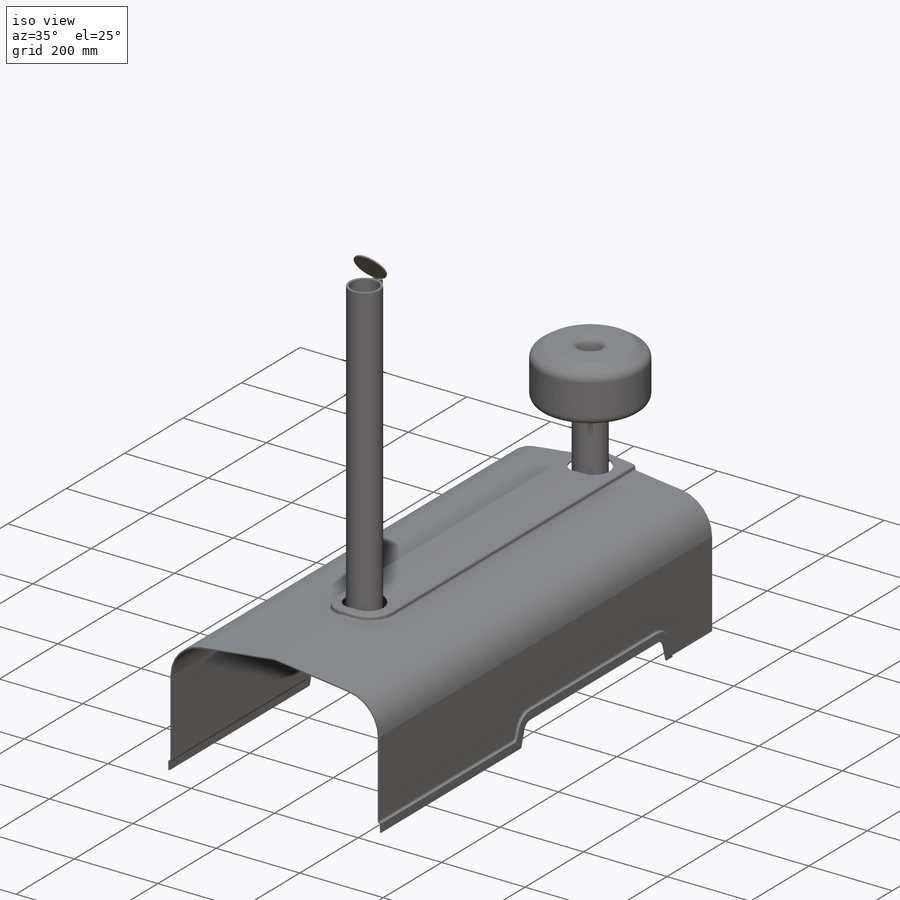
[diagram: iso view]
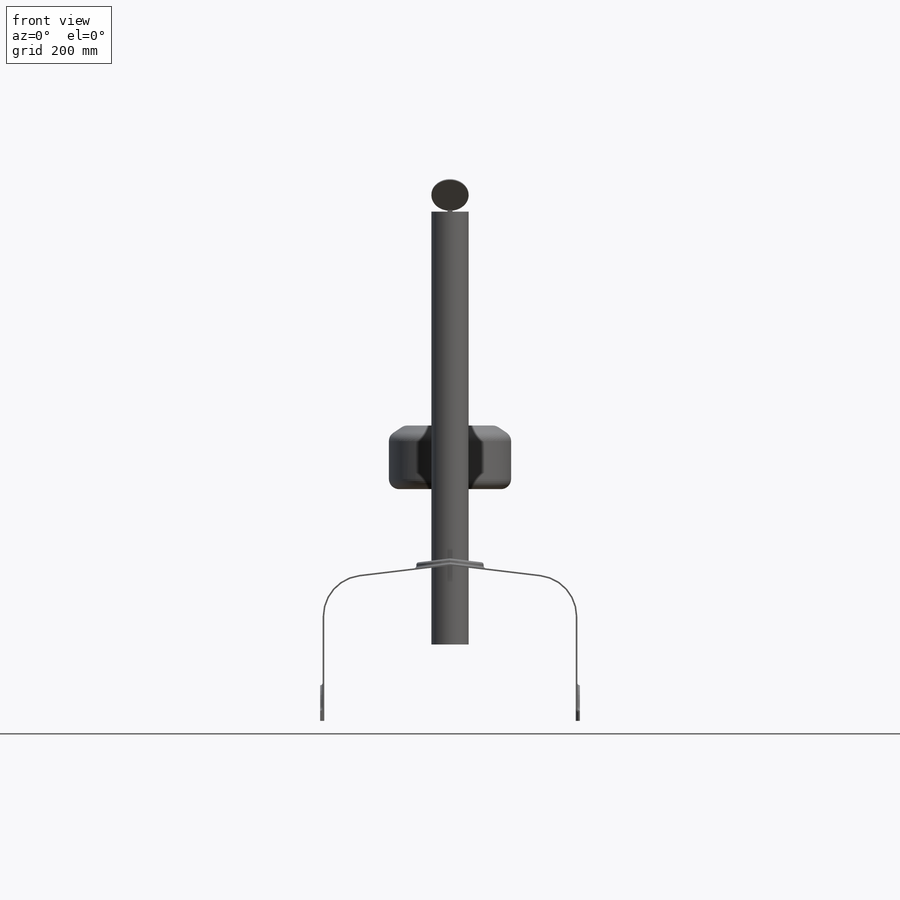
[diagram: front view]
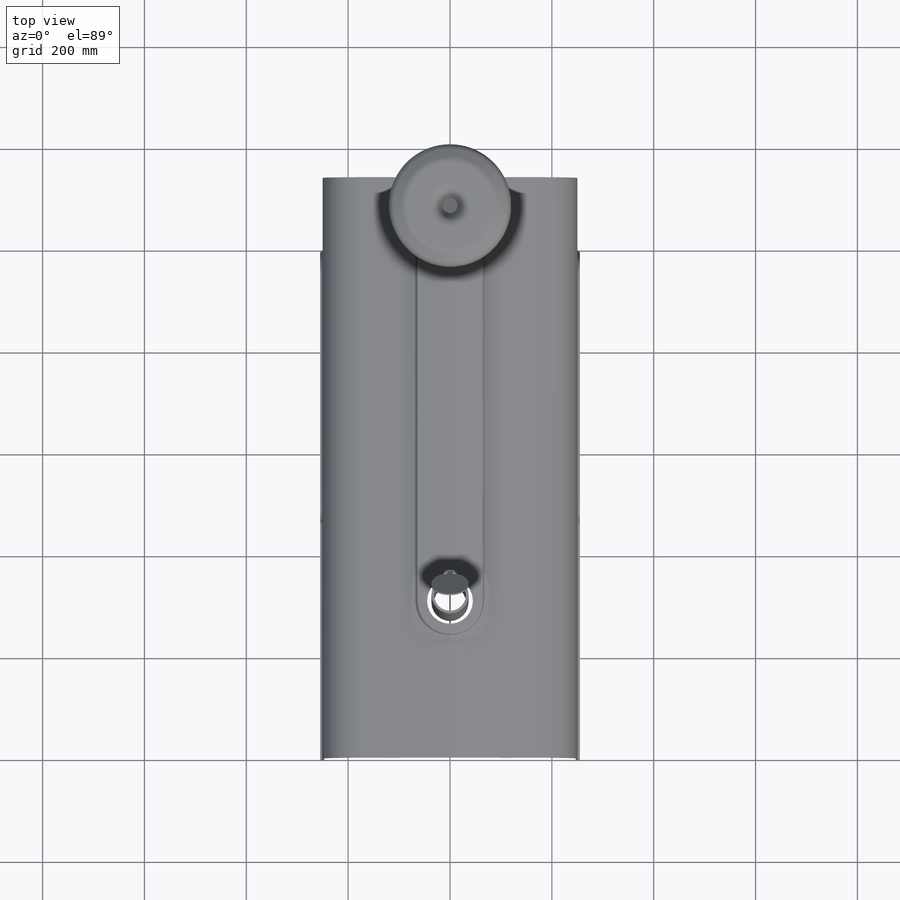
[diagram: top view]
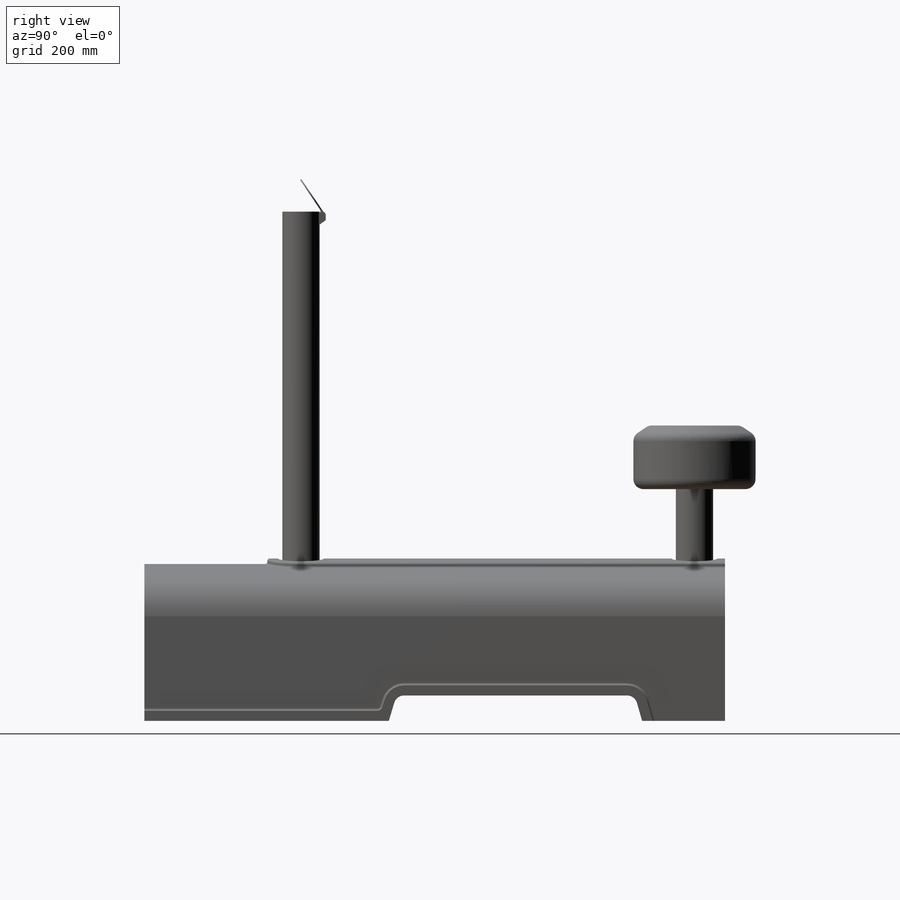
[diagram: right view]
SOLIDWORKS PART (.sldprt)
format: sldprt  version: not decoded by parser v0  size: 624,128 bytes
history: native  units: mm
features: sketch x17, extrude x8, cut_extrude x3, fillet x2, plane x2, revolve x2, material x1, shell x1 (+13 scaffold rows collapsed)
feature tree (49):
  scaffold x13  (default folders/planes/origin — collapsed)
  material  "Material <not specified>"
  sketch  "Sketch1"  dims[c1.D2=82.0mm c1.D4=82.0mm c1.D1=500.0mm c2.D2=278.0mm c2.D3=308.0mm]
  extrude  "Boss-Extrude1"  Depth=1140mm
  sketch  "Sketch2"  dims[c1.D6=10.0mm c1.D7=40.0mm c1.D1=50.0mm c1.D2=1038.0mm c1.D3=498.0mm c1.D4=15.0mm c1.D5=20.0mm c1.D8=20.0mm c2.D2=142.0mm]
  extrude  "Boss-Extrude2"  Depth=5mm
  sketch  "Sketch4"  dims[c1.D1=11.0mm c1.D2=65.5mm c2.D2=~0.072515deg c3.D2=66.0mm c3.D3=7.92mm]
  extrude  "Boss-Extrude3"  Depth=832.5mm
  sketch  "Sketch5"
  extrude  "Boss-Extrude4"  [1 undecoded]
  extrude  "Boss-Extrude5"  [1 undecoded]
  sketch  "Sketch5<3>"
  fillet  "Fillet1"  Radius=5mm
  sketch  "Sketch6"  dims[D1=90.0mm D2=60.0mm D3=800.0mm]
  cut_extrude  "Cut-Extrude1"  [1 undecoded]
  shell  "Shell1"  Thickness=3mm
  sketch  "Sketch8"  dims[D1=20.0mm]
  cut_extrude  "Cut-Extrude2"  [1 undecoded]
  sketch  "3DSketch1"  dims[D3=~55.205151mm D4=100.0mm D1=150.0mm D2=850.0mm]
  plane  "Plane1"
  sketch  "Sketch14"  dims[In_dia=62.7126mm Out_dia=73.025mm]
  sketch  "Sketch15"  dims[c1.D1=3.0mm c1.D2=~45.261069mm c2.D2=45.0deg c2.D3=36.5125mm c3.D2=3.0mm c3.D4=~1.682482mm]
  revolve  "Revolve1"  Angle=360deg
  sketch  "Sketch16"  dims[D4=7.0mm D5=5.0mm D1=20.0mm D2=10.0mm D3=2.0mm]
  extrude  "Boss-Extrude6"  Depth=20mm
  sketch  "Sketch17"  dims[D1=2.0mm]
  extrude  "Boss-Extrude7"  Depth=10mm
  sketch  "Sketch18"  dims[D1=15.0mm]
  cut_extrude  "Cut-Extrude3"  Depth=10mm
  sketch  "Sketch19"
  extrude  "Boss-Extrude8"  Depth=25mm
  sketch  "3DSketch2"  dims[D1=150.0mm D2=350.0mm]
  plane  "Plane2"
  sketch  "Sketch110"  dims[In_dia=62.7126mm Out_dia=73.025mm]
  sketch  "Sketch111"  dims[c1.D1=120.0mm c1.D2=30.0mm c1.D3=15.0mm c1.D4=30.0mm c1.D5=~43.704581mm c2.D5=10.0deg c2.D6=30.0mm c2.D7=50.0mm c2.D8=80.0mm c2.D9=30.0mm c2.D10=20.0mm c2.D11=10.0mm c2.D12=15.0mm c2.D13=15.0mm]
  revolve  "Revolve2"  Angle=360deg
  fillet  "Fillet2"  Radius=20mm
decode coverage: 26 of 33 modeling features carry decoded parameters
note: ~ marks probable driven/reference dimensions
note: 4 parameter values undecoded
summary: no parameter record found for 4 features
note: suppression state not decoded; provenance and decode notes live in map.json
